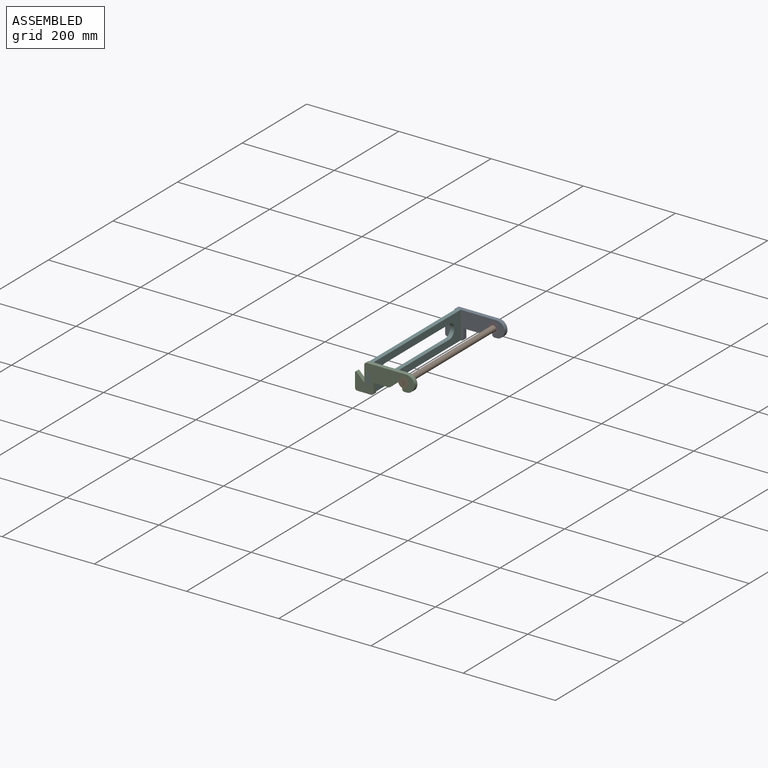
[diagram: assembled view]
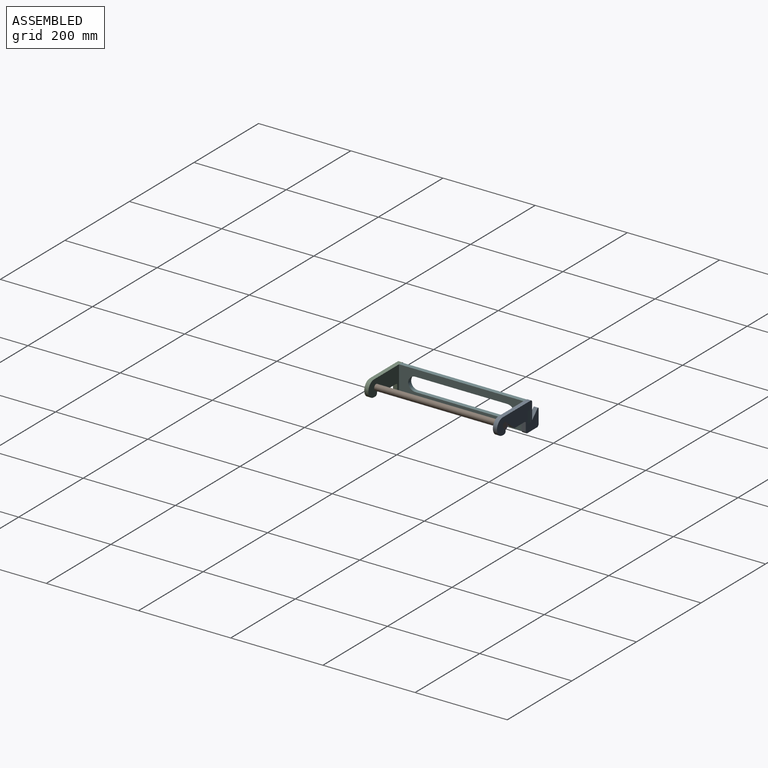
[diagram: assembled view, second angle]
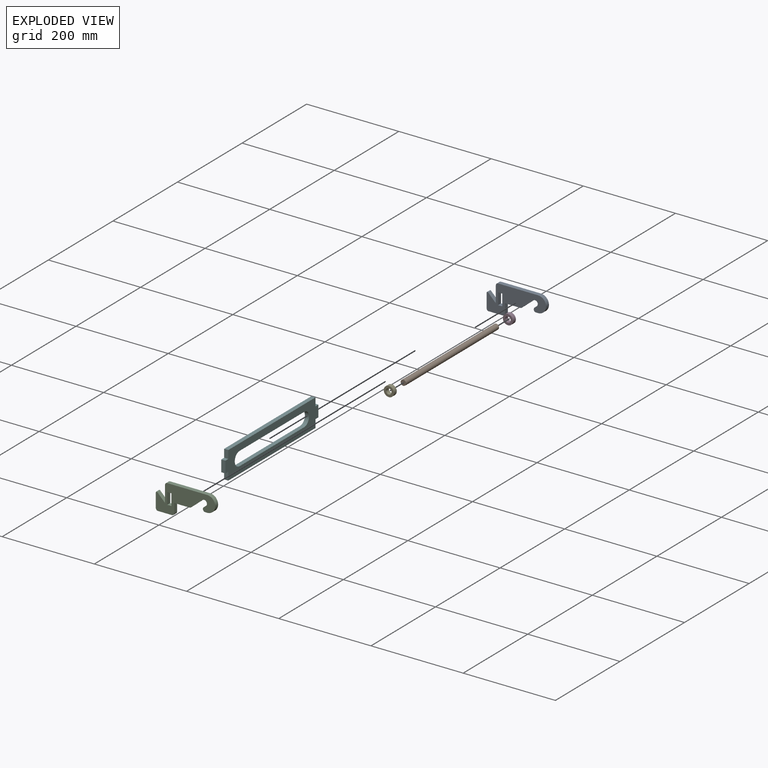
[diagram: exploded view]
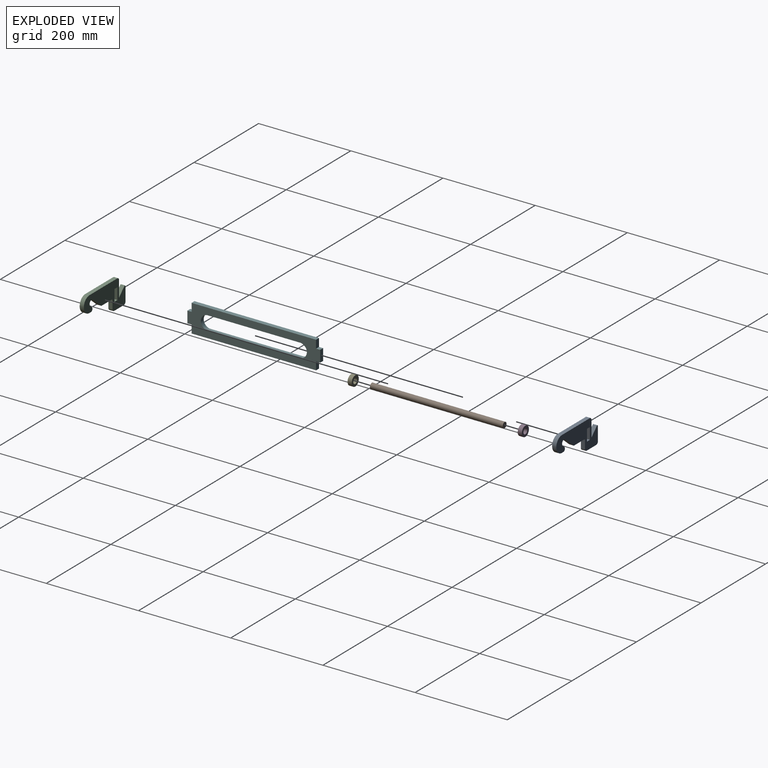
[diagram: exploded view, second angle]
ASSEMBLY  parts=6 mates=5
PART A: 25 faces, bbox 129x60x9 mm
  f0: plane 30.17x9mm, normal (-1,0,0), area 271.5mm2, adj f15,f16,f21,f22
  f1: plane 16.59x16.59mm, normal (0.71,-0.71,0), area 211.1mm2, adj f2,f15,f16,f22
  f2: plane 35x9mm, normal (-1,0,0), area 315mm2, adj f1,f15,f16,f17
  f3: plane 86.5x9mm, normal (0,-1,0), area 778.5mm2, adj f15,f16,f17,f24
  f4: plane 9x4.24mm, normal (0,1,0), area 38.2mm2, adj f15,f16,f18,f24
  f5: plane 9x4.85mm, normal (-0.65,-0.76,0), area 57.2mm2, adj f6,f15,f16,f18
  f6: cylinder r=6mm len=10.58mm, axis (0,0,-1), area 169.6mm2, adj f5,f7,f15,f16
  f7: plane 24.69x20.9mm, normal (0.65,0.76,0), area 291.1mm2, adj f6,f15,f16,f19
  f8: plane 31.2x9mm, normal (0,1,0), area 280.8mm2, adj f15,f16,f19,f23
  f9: plane 18x9mm, normal (1,0,0), area 162mm2, adj f15,f16,f20,f23
  f10: plane 25x9mm, normal (1,0,0), area 225mm2, adj f11,f13,f15,f16
  f11: plane 9x9mm, normal (0,-1,0), area 81mm2, adj f10,f12,f15,f16
  f12: plane 25x9mm, normal (-1,0,0), area 225mm2, adj f11,f13,f15,f16
  f13: plane 9x9mm, normal (0,1,0), area 81mm2, adj f10,f12,f15,f16
  f14: plane 30x9mm, normal (0,1,0), area 270mm2, adj f15,f16,f20,f21
  f15: plane 129x60mm, normal (0,0,1), area 4118.6mm2, adj f0,f1,f2,f3,f4,f5,f6,f7
  f16: plane 129x60mm, normal (0,0,-1), area 4118.6mm2, adj f0,f1,f2,f3,f4,f5,f6,f7
  f17: cylinder r=5mm len=9mm, axis (0,0,-1), area 70.7mm2, adj f2,f3,f15,f16
  f18: cylinder r=5mm len=9mm, axis (0,0,-1), area 109.8mm2, adj f4,f5,f15,f16
  f19: cylinder r=5mm len=9mm, axis (0,0,-1), area 31.6mm2, adj f7,f8,f15,f16
  f20: cylinder r=5mm len=9mm, axis (0,0,-1), area 70.7mm2, adj f9,f14,f15,f16
  f21: cylinder r=5mm len=9mm, axis (0,0,-1), area 70.7mm2, adj f0,f14,f15,f16
  f22: cylinder r=2mm len=9mm, axis (0,0,1), area 42.4mm2, adj f0,f1,f15,f16
  f23: cylinder r=2mm len=9mm, axis (0,0,1), area 28.3mm2, adj f8,f9,f15,f16
  f24: cylinder r=17.5mm len=35mm, axis (0,0,1), area 494.8mm2, adj f3,f4,f15,f16
PART B: 3 faces, bbox 12x12x288 mm
  f0: cylinder r=6mm len=288mm, axis (0,0,-1), area 10857.3mm2, adj f1,f2
  f1: plane 12x12mm, normal (0,0,1), area 113.1mm2, adj f0
  f2: plane 12x12mm, normal (0,0,-1), area 113.1mm2, adj f0
PART C: same geometry as A
PART D: 4 faces, bbox 22x22x9 mm
  f0: cylinder r=6mm len=12mm, axis (0,0,-1), area 339.3mm2, adj f2,f3
  f1: cylinder r=11mm len=22mm, axis (0,0,-1), area 622mm2, adj f2,f3
  f2: plane 22x22mm, normal (0,0,1), area 267mm2, adj f0,f1
  f3: plane 22x22mm, normal (0,0,-1), area 267mm2, adj f0,f1
PART E: same geometry as D
PART F: 18 faces, bbox 288x60x9 mm
  f0: plane 25x8.95mm, normal (1,0,0), area 223.8mm2, adj f1,f5,f15,f16
  f1: plane 9x8.95mm, normal (0,1,0), area 80.5mm2, adj f0,f10,f15,f16
  f2: plane 9x8.95mm, normal (0,1,0), area 80.5mm2, adj f3,f8,f15,f17
  f3: plane 25x8.95mm, normal (-1,0,0), area 223.8mm2, adj f2,f4,f15,f17
  f4: plane 9x8.95mm, normal (0,-1,0), area 80.5mm2, adj f3,f8,f15,f17
  f5: plane 9x8.95mm, normal (0,-1,0), area 80.5mm2, adj f0,f10,f15,f16
  f6: plane 270x60mm, normal (0,0,1), area 9493.1mm2, adj f7,f8,f9,f10,f11,f12,f13,f14
  f7: plane 270x9mm, normal (0,1,0), area 2430mm2, adj f6,f8,f10,f15
  f8: plane 60x9mm, normal (-1,0,0), area 316.2mm2, adj f2,f4,f6,f7,f9,f15,f17
  f9: plane 270x9mm, normal (0,-1,0), area 2430mm2, adj f6,f8,f10,f15
  f10: plane 60x9mm, normal (1,0,0), area 316.2mm2, adj f1,f5,f6,f7,f9,f15,f16
  f11: cylinder r=15mm len=30mm, axis (0,0,-1), area 424.1mm2, adj f6,f12,f14,f15
  f12: plane 200x9mm, normal (0,-1,0), area 1800mm2, adj f6,f11,f13,f15
  f13: cylinder r=15mm len=30mm, axis (0,0,-1), area 424.1mm2, adj f6,f12,f14,f15
  f14: plane 200x9mm, normal (0,1,0), area 1800mm2, adj f6,f11,f13,f15
  f15: plane 288x60mm, normal (0,0,-1), area 9943.1mm2, adj f0,f1,f2,f3,f4,f5,f7,f8
  f16: plane 25x9mm, normal (0,0,1), area 225mm2, adj f0,f1,f5,f10
  f17: plane 25x9mm, normal (0,0,1), area 225mm2, adj f2,f3,f4,f8
PLACE A rot(axis=(-1,0,0),90deg) t=(-33.98,135,10)mm
PLACE B rot(axis=(1,0,0),90deg) t=(71.02,143.73,12.5)mm
PLACE C rot(axis=(-1,0,0),90deg) t=(-33.98,-144,10)mm
PLACE D rot(axis=(1,0,0),90deg) t=(71.02,143.73,12.5)mm
PLACE E rot(axis=(-1,0,0),90deg) t=(71.03,-144.27,12.5)mm
PLACE F rot(axis=(0.58,-0.58,-0.58),120deg) t=(0,0,-30)mm
MATE fastened B.f0 <-> E.f0  axis (0,-1,0) through (71.03,-144.27,12.5)mm
MATE fastened D.f0 <-> B.f0  axis (0,1,0) through (71.02,143.73,12.5)mm
MATE slider B.f0 <-> A.f6  axis (0,1,0) through (71.02,143.73,12.5)mm
MATE fastened F.f0 <-> C.f16  axis (0,-1,0) through (-4.47,-144,0)mm
MATE fastened F.f3 <-> A.f15  axis (0,1,0) through (-4.48,144,0)mm
